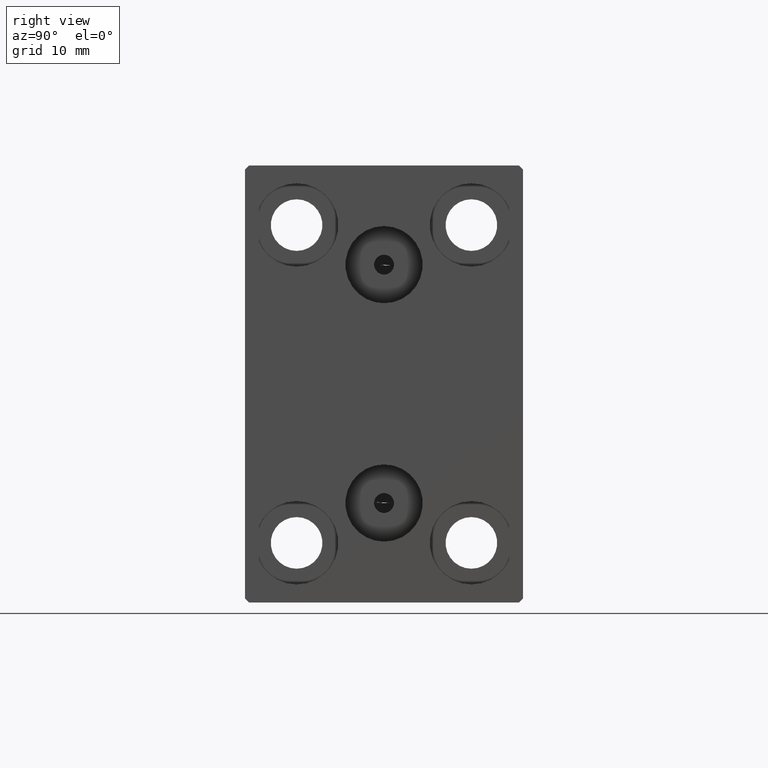
[diagram: clean part render]
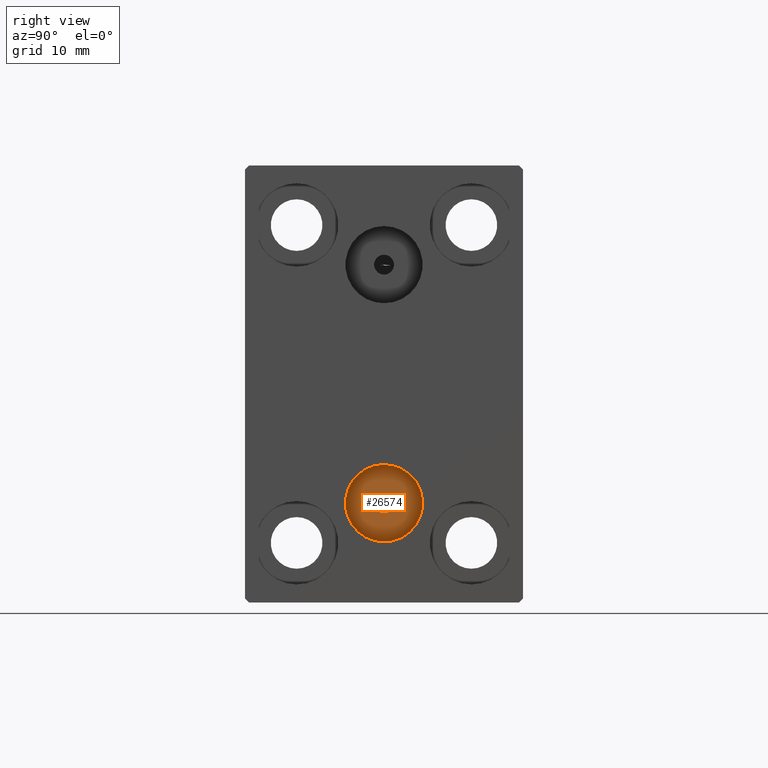
[diagram: same view with one face highlighted and labeled with its STEP entity id]
A machine part, right view. The second image highlights one B-rep face of the part: STEP entity #26574.
In plain terms, the highlighted planar face has unit normal (-1, 0, 0).
Its self-contained STEP definition (entity closure, byte-faithful):
#636 = DIRECTION ( 'NONE',  ( 1.000000000000000000, 0.000000000000000000, 0.000000000000000000 ) ) ;
#1795 = AXIS2_PLACEMENT_3D ( 'NONE', #19248, #26348, #12592 ) ;
#2717 = ORIENTED_EDGE ( 'NONE', *, *, #10891, .F. ) ;
#4040 = EDGE_LOOP ( 'NONE', ( #16907, #31568 ) ) ;
#4833 = AXIS2_PLACEMENT_3D ( 'NONE', #22909, #26241, #26912 ) ;
#5160 = EDGE_LOOP ( 'NONE', ( #2717, #33597 ) ) ;
#5515 = CIRCLE ( 'NONE', #4833, 1.250000000000001110 ) ;
#7311 = CARTESIAN_POINT ( 'NONE',  ( 46.00000000000000000, -1.836970198721029589E-15, -16.25000000000000000 ) ) ;
#9936 = EDGE_CURVE ( 'NONE', #12745, #33190, #22142, .T. ) ;
#10891 = EDGE_CURVE ( 'NONE', #29187, #42852, #23585, .T. ) ;
#11079 = CARTESIAN_POINT ( 'NONE',  ( 46.00000000000000000, -1.836970198721029589E-15, -15.00000000000000000 ) ) ;
#12592 = DIRECTION ( 'NONE',  ( 0.000000000000000000, 0.000000000000000000, 1.000000000000000000 ) ) ;
#12745 = VERTEX_POINT ( 'NONE', #21102 ) ;
#14437 = DIRECTION ( 'NONE',  ( -1.000000000000000000, -0.000000000000000000, 0.000000000000000000 ) ) ;
#14838 = CARTESIAN_POINT ( 'NONE',  ( 46.00000000000000000, -1.734723475976807094E-15, -19.85999999999999943 ) ) ;
#16907 = ORIENTED_EDGE ( 'NONE', *, *, #18678, .T. ) ;
#17727 = CARTESIAN_POINT ( 'NONE',  ( 46.00000000000000000, -1.734723475976807094E-15, -15.00000000000000000 ) ) ;
#18678 = EDGE_CURVE ( 'NONE', #33190, #12745, #25927, .T. ) ;
#19248 = CARTESIAN_POINT ( 'NONE',  ( 46.00000000000000000, -1.734723475976807094E-15, -15.00000000000000000 ) ) ;
#19642 = AXIS2_PLACEMENT_3D ( 'NONE', #27751, #14437, #24646 ) ;
#21102 = CARTESIAN_POINT ( 'NONE',  ( 46.00000000000000000, -1.139545131591193817E-15, -10.14000000000000057 ) ) ;
#22142 = CIRCLE ( 'NONE', #36333, 4.859999999999999432 ) ;
#22909 = CARTESIAN_POINT ( 'NONE',  ( 46.00000000000000000, -1.836970198721029589E-15, -15.00000000000000000 ) ) ;
#23585 = CIRCLE ( 'NONE', #28538, 1.250000000000001110 ) ;
#24646 = DIRECTION ( 'NONE',  ( 0.000000000000000000, 0.000000000000000000, 1.000000000000000000 ) ) ;
#25927 = CIRCLE ( 'NONE', #1795, 4.859999999999999432 ) ;
#26241 = DIRECTION ( 'NONE',  ( 1.000000000000000000, 0.000000000000000000, 0.000000000000000000 ) ) ;
#26300 = CARTESIAN_POINT ( 'NONE',  ( 46.00000000000000000, -1.683889348827610456E-15, -13.74999999999999822 ) ) ;
#26348 = DIRECTION ( 'NONE',  ( 1.000000000000000000, 0.000000000000000000, -0.000000000000000000 ) ) ;
#26574 = ADVANCED_FACE ( 'NONE', ( #41511, #31081 ), #35064, .F. ) ;
#26912 = DIRECTION ( 'NONE',  ( 0.000000000000000000, 0.000000000000000000, -1.000000000000000000 ) ) ;
#27707 = DIRECTION ( 'NONE',  ( 1.000000000000000000, 0.000000000000000000, -0.000000000000000000 ) ) ;
#27751 = CARTESIAN_POINT ( 'NONE',  ( 46.00000000000000000, -1.734723475976807094E-15, -15.00000000000000000 ) ) ;
#28353 = DIRECTION ( 'NONE',  ( 0.000000000000000000, 0.000000000000000000, 1.000000000000000000 ) ) ;
#28360 = DIRECTION ( 'NONE',  ( 0.000000000000000000, 0.000000000000000000, -1.000000000000000000 ) ) ;
#28538 = AXIS2_PLACEMENT_3D ( 'NONE', #11079, #636, #28360 ) ;
#29187 = VERTEX_POINT ( 'NONE', #7311 ) ;
#31081 = FACE_OUTER_BOUND ( 'NONE', #4040, .T. ) ;
#31568 = ORIENTED_EDGE ( 'NONE', *, *, #9936, .T. ) ;
#33190 = VERTEX_POINT ( 'NONE', #14838 ) ;
#33597 = ORIENTED_EDGE ( 'NONE', *, *, #34573, .F. ) ;
#34573 = EDGE_CURVE ( 'NONE', #42852, #29187, #5515, .T. ) ;
#35064 = PLANE ( 'NONE',  #19642 ) ;
#36333 = AXIS2_PLACEMENT_3D ( 'NONE', #17727, #27707, #28353 ) ;
#41511 = FACE_BOUND ( 'NONE', #5160, .T. ) ;
#42852 = VERTEX_POINT ( 'NONE', #26300 ) ;